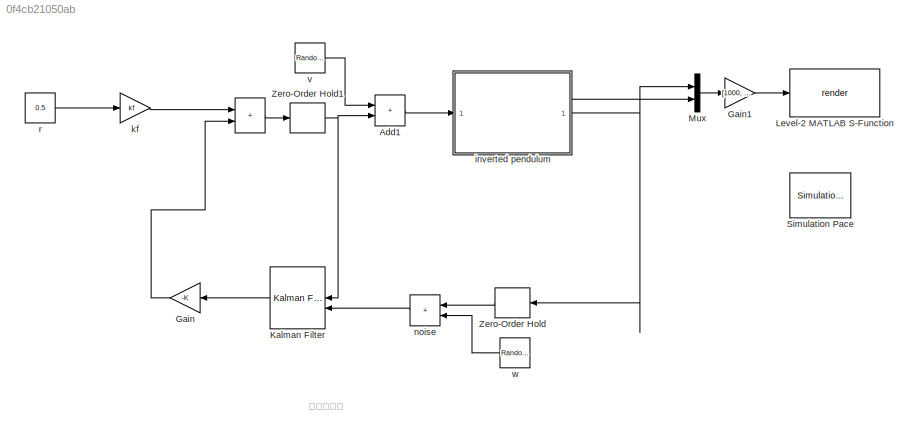
MODEL slx_0f4cb21050ab
KIND model
CONFIG AbsTol = auto
CONFIG EnableMultiTasking = off
CONFIG FixedStep = auto
CONFIG MaxStep = auto
CONFIG MinStep = auto
CONFIG PostLoadFcn = IP4_init
CONFIG RelTol = 1e-3
CONFIG SampleTimeConstraint = Unconstrained
CONFIG SolverName = VariableStepAuto
CONFIG StartTime = 0.0
CONFIG StopTime = 10
BLOCK [Sum]  
  IconShape = rectangular
BLOCK [Sum] Add1
  IconShape = rectangular
BLOCK [Gain] Gain
  Gain = -K
  Multiplication = Matrix(K*u)
BLOCK [Gain] Gain1
  Gain = [1000, 1]
BLOCK [Reference] Kalman Filter  REF=ctrlSharedLib/Kalman Filter
  LibrarySourceBlock = cstblocks/State Estimation/Kalman Filter
  SourceBlock = ctrlSharedLib/Kalman Filter
  SourceType = ctrlKalmanFilter
BLOCK [Reference] Level-2 MATLAB S-Function  REF=my_library/render  (lib defined in slx_4b070192c2bc, slx_8dfaa4fb899d, +2 more)
  SourceBlock = my_library/render
  SourceProductName = MyLibrary
BLOCK [Mux] Mux
  DisplayOption = bar
  Inputs = 2
BLOCK [Reference] Simulation Pace  REF=aerolibanimutils/Simulation Pace
  AttributesFormatString = %<SleepMode>\n%<SimulationPace> sec/sec
  Commented = on
  SourceBlock = aerolibanimutils/Simulation Pace
  SourceType = Simulation Pace
BLOCK [ZeroOrderHold] Zero-Order Hold
  SampleTime = Ts
BLOCK [ZeroOrderHold] Zero-Order Hold1
  SampleTime = Ts
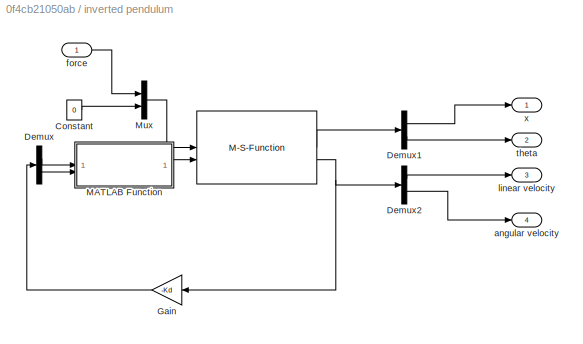
BLOCK [SubSystem] inverted pendulum
BLOCK [M-S-Function] inverted pendulum/ 
  FunctionName = robot_dynamics
  Parameters = robot, init_pos, init_vel
BLOCK [Constant] inverted pendulum/Constant
  Value = 0
BLOCK [Demux] inverted pendulum/Demux
  Outputs = 2
BLOCK [Demux] inverted pendulum/Demux1
  Outputs = 2
BLOCK [Demux] inverted pendulum/Demux2
  Outputs = 2
BLOCK [Gain] inverted pendulum/Gain
  Gain = -Kd
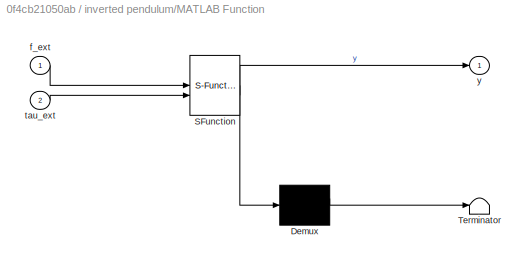
BLOCK [SubSystem] inverted pendulum/MATLAB Function
  ErrorFcn = Stateflow.Translate.translate
  PermitHierarchicalResolution = ExplicitOnly
  SFBlockType = MATLAB Function
  TreatAsAtomicUnit = on
BLOCK [Demux] inverted pendulum/MATLAB Function/ Demux 
  Outputs = 1
BLOCK [S-Function] inverted pendulum/MATLAB Function/ SFunction 
  EnableBusSupport = off
  FunctionName = sf_sfun
  PortCounts = [2 2]
  SFcnIsStateOwnerBlock = off
  SFunctionDeploymentMode = off
  Tag = Stateflow S-Function 2
BLOCK [Terminator] inverted pendulum/MATLAB Function/ Terminator 
BLOCK [Inport] inverted pendulum/MATLAB Function/f_ext
BLOCK [Inport] inverted pendulum/MATLAB Function/tau_ext
  Port = 2
BLOCK [Outport] inverted pendulum/MATLAB Function/y
  VectorParamsAs1DForOutWhenUnconnected = off
BLOCK [Mux] inverted pendulum/Mux
  DisplayOption = bar
  Inputs = 2
BLOCK [Outport] inverted pendulum/angular velocity
  Port = 4
BLOCK [Inport] inverted pendulum/force
BLOCK [Outport] inverted pendulum/linear velocity
  Port = 3
BLOCK [Outport] inverted pendulum/theta
  Port = 2
BLOCK [Outport] inverted pendulum/x
BLOCK [Gain] kf
  Gain = kf
  Multiplication = Matrix(K*u)
BLOCK [Sum] noise
  IconShape = rectangular
BLOCK [Constant] r
  SampleTime = -1
  Value = 0.5
BLOCK [RandomNumber] v
  SampleTime = Ts
  Variance = Q
BLOCK [RandomNumber] w
  SampleTime = Ts
  Variance = R
ANNOTATION (root): 离散控制器
LINE  :1 -> Zero-Order Hold1:1
LINE Add1:1 -> inverted pendulum:1
LINE Gain1:1 -> Level-2 MATLAB S-Function:1
LINE Gain:1 ->  :2
LINE Kalman Filter:1 -> Gain:1
LINE Mux:1 -> Gain1:1
NET Zero-Order Hold1:1 -> Add1:2, Kalman Filter:1
LINE Zero-Order Hold:1 -> noise:1
LINE inverted pendulum/ :1 -> inverted pendulum/Demux1:1
NET inverted pendulum/ :2 -> inverted pendulum/Demux2:1, inverted pendulum/Gain:1
LINE inverted pendulum/Constant:1 -> inverted pendulum/Mux:2
LINE inverted pendulum/Demux1:1 -> inverted pendulum/x:1
LINE inverted pendulum/Demux1:2 -> inverted pendulum/theta:1
LINE inverted pendulum/Demux2:1 -> inverted pendulum/linear velocity:1
LINE inverted pendulum/Demux2:2 -> inverted pendulum/angular velocity:1
LINE inverted pendulum/Demux:1 -> inverted pendulum/MATLAB Function:1
LINE inverted pendulum/Demux:2 -> inverted pendulum/MATLAB Function:2
LINE inverted pendulum/Gain:1 -> inverted pendulum/Demux:1
LINE inverted pendulum/MATLAB Function:1 -> inverted pendulum/ :2
LINE inverted pendulum/Mux:1 -> inverted pendulum/ :1
LINE inverted pendulum/force:1 -> inverted pendulum/Mux:1
NET inverted pendulum:1 -> Mux:1, Zero-Order Hold:1
LINE inverted pendulum:2 -> Mux:2
LINE kf:1 ->  :1
LINE noise:1 -> Kalman Filter:2
LINE r:1 -> kf:1
LINE v:1 -> Add1:1
LINE w:1 -> noise:2
note: NET lines group one-source signal fan-out (src -> all destinations, sorted); 1:1 wires keep LINE
CHART inverted pendulum/MATLAB Function states=1 transitions=1
  STATE_LABEL 'eML_blk_kernel()'
  STATE_LABEL "SCRIPT:\nfunction y = fcn(f_ext, tau_ext)\n%#codegen\ny1 = [0, 0, 0, f_ext, 0, 0]';\ny2 = [0, 0, tau_ext, 0, 0, 0]';\ny = [y1, y2];"
CHART  states=0 transitions=0
